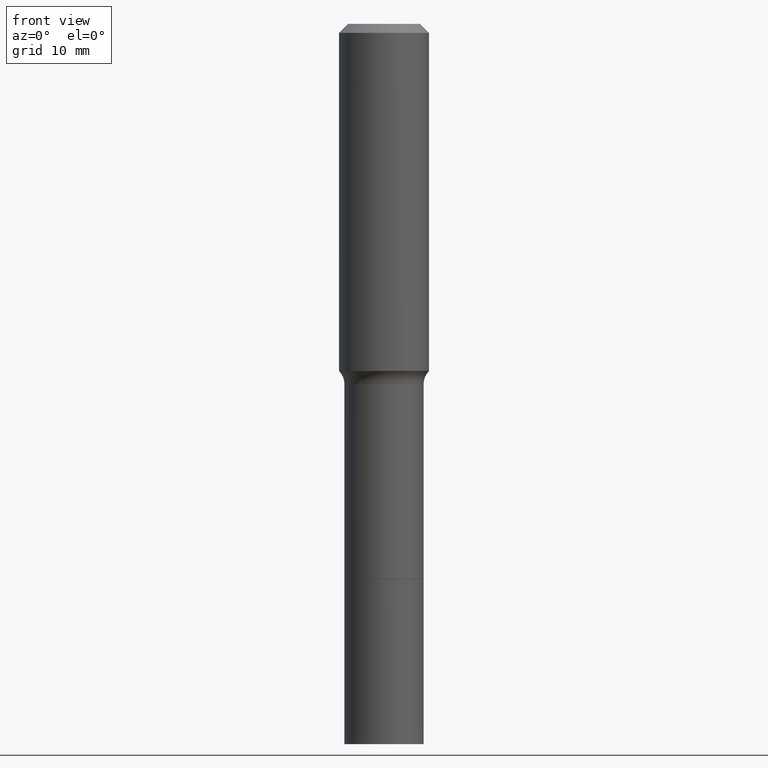
[diagram: clean part render]
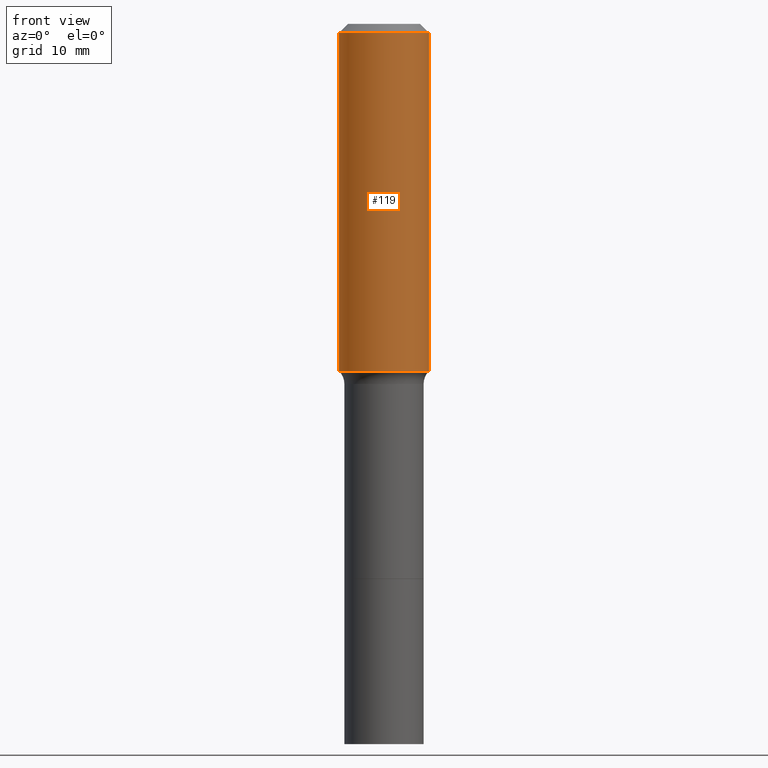
[diagram: same view with one face highlighted and labeled with its STEP entity id]
A machine part, front view. The second image highlights one B-rep face of the part: STEP entity #119.
In plain terms, the highlighted cylindrical surface (partial cylindrical patch) has radius 5 mm, axis along (-0, 0, 1).
Its self-contained STEP definition (entity closure, byte-faithful):
#18 = LINE ( 'NONE', #345, #395 ) ;
#32 = DIRECTION ( 'NONE',  ( -2.445468806185136597E-29, 3.491481338843145583E-15, 1.000000000000000000 ) ) ;
#50 = CARTESIAN_POINT ( 'NONE',  ( -0.1968500000000001915, -3.900594588805818915E-15, -1.517779260394222174 ) ) ;
#53 = DIRECTION ( 'NONE',  ( -2.445468806185136597E-29, 3.491481338843145583E-15, 1.000000000000000000 ) ) ;
#60 = CARTESIAN_POINT ( 'NONE',  ( 9.627810689950950651E-31, -1.374596203102556054E-16, -0.03937000000000027977 ) ) ;
#64 = LINE ( 'NONE', #298, #190 ) ;
#98 = EDGE_CURVE ( 'NONE', #407, #359, #18, .T. ) ;
#114 = CIRCLE ( 'NONE', #297, 0.1968500000000000250 ) ;
#119 = ADVANCED_FACE ( 'NONE', ( #264 ), #304, .T. ) ;
#125 = ORIENTED_EDGE ( 'NONE', *, *, #137, .F. ) ;
#137 = EDGE_CURVE ( 'NONE', #359, #320, #114, .T. ) ;
#149 = AXIS2_PLACEMENT_3D ( 'NONE', #462, #260, #221 ) ;
#159 = ORIENTED_EDGE ( 'NONE', *, *, #477, .T. ) ;
#169 = ORIENTED_EDGE ( 'NONE', *, *, #98, .F. ) ;
#178 = CARTESIAN_POINT ( 'NONE',  ( 0.1968500000000000250, -1.512055823412797189E-15, -0.03937000000000027977 ) ) ;
#190 = VECTOR ( 'NONE', #353, 39.37007874015748143 ) ;
#212 = ORIENTED_EDGE ( 'NONE', *, *, #258, .T. ) ;
#221 = DIRECTION ( 'NONE',  ( 1.000000000000000000, -6.982962677686266711E-15, 4.876176775795935793E-29 ) ) ;
#249 = VERTEX_POINT ( 'NONE', #504 ) ;
#258 = EDGE_CURVE ( 'NONE', #249, #320, #64, .T. ) ;
#260 = DIRECTION ( 'NONE',  ( -2.445468806185136597E-29, 3.491481338843145583E-15, 1.000000000000000000 ) ) ;
#264 = FACE_OUTER_BOUND ( 'NONE', #482, .T. ) ;
#268 = DIRECTION ( 'NONE',  ( 1.000000000000000000, -6.982962677686265922E-15, 0.000000000000000000 ) ) ;
#289 = CIRCLE ( 'NONE', #355, 0.1968500000000001915 ) ;
#295 = CARTESIAN_POINT ( 'NONE',  ( -0.1968500000000000250, -1.319675416886158354E-15, -0.03937000000000027977 ) ) ;
#297 = AXIS2_PLACEMENT_3D ( 'NONE', #60, #53, #268 ) ;
#298 = CARTESIAN_POINT ( 'NONE',  ( 0.1968500000000001082, -1.374596203102542397E-15, 9.598753983154305062E-30 ) ) ;
#304 = CYLINDRICAL_SURFACE ( 'NONE', #149, 0.1968500000000001082 ) ;
#320 = VERTEX_POINT ( 'NONE', #178 ) ;
#345 = CARTESIAN_POINT ( 'NONE',  ( -0.1968500000000001082, 1.398703375343757985E-15, -9.682923725166787881E-30 ) ) ;
#349 = DIRECTION ( 'NONE',  ( -2.445468806185136877E-29, 3.491481338843145188E-15, 1.000000000000000000 ) ) ;
#353 = DIRECTION ( 'NONE',  ( -2.445468806185136877E-29, 3.491481338843145188E-15, 1.000000000000000000 ) ) ;
#355 = AXIS2_PLACEMENT_3D ( 'NONE', #392, #32, #402 ) ;
#359 = VERTEX_POINT ( 'NONE', #295 ) ;
#392 = CARTESIAN_POINT ( 'NONE',  ( 3.711681835968817620E-29, -5.299297964149577492E-15, -1.517779260394222174 ) ) ;
#395 = VECTOR ( 'NONE', #349, 39.37007874015748143 ) ;
#402 = DIRECTION ( 'NONE',  ( 1.000000000000000000, -6.982962677686266711E-15, 0.000000000000000000 ) ) ;
#407 = VERTEX_POINT ( 'NONE', #50 ) ;
#462 = CARTESIAN_POINT ( 'NONE',  ( 0.000000000000000000, 0.000000000000000000, 0.000000000000000000 ) ) ;
#477 = EDGE_CURVE ( 'NONE', #407, #249, #289, .T. ) ;
#482 = EDGE_LOOP ( 'NONE', ( #169, #159, #212, #125 ) ) ;
#504 = CARTESIAN_POINT ( 'NONE',  ( 0.1968500000000001915, -6.673894167252119100E-15, -1.517779260394222174 ) ) ;